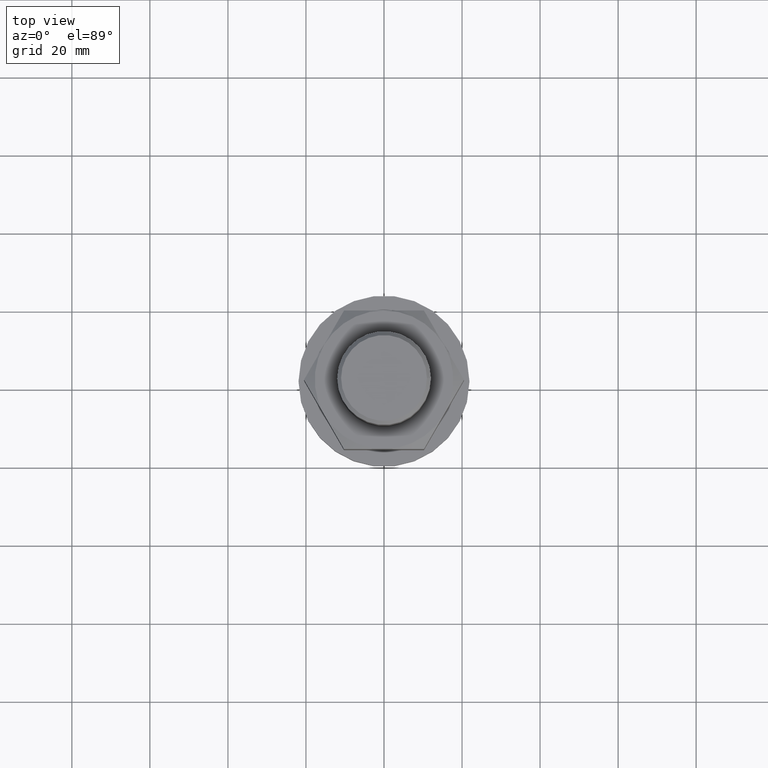
[diagram: clean part render]
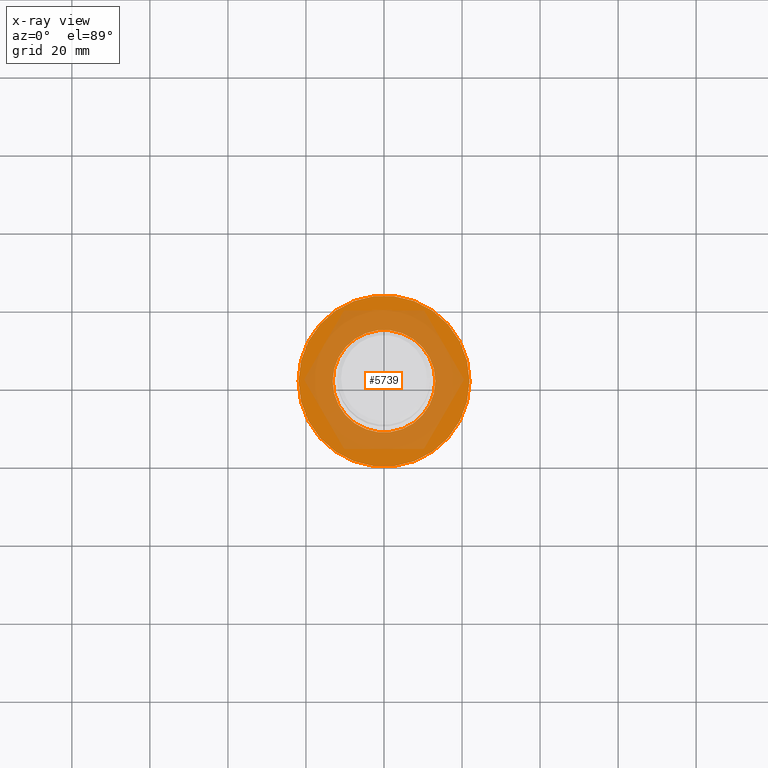
[diagram: x-ray — body ghosted, one internal face saturated and labeled with its STEP entity id]
A machine part, top view, then the same camera in x-ray: the body is ghosted and one INTERNAL B-rep face — a face not visible from any outside direction — is saturated and labeled: STEP entity #5739.
In plain terms, the highlighted planar face has unit normal (0, 0, 1).
Its self-contained STEP definition (entity closure, byte-faithful):
#22 = EDGE_CURVE ( 'NONE', #3017, #3017, #5669, .T. ) ;
#55 = CARTESIAN_POINT ( 'NONE',  ( 0.000000000000000000, 0.000000000000000000, 1.500000000000000000 ) ) ;
#121 = EDGE_CURVE ( 'NONE', #3299, #3299, #3829, .T. ) ;
#280 = EDGE_LOOP ( 'NONE', ( #510 ) ) ;
#472 = DIRECTION ( 'NONE',  ( 0.000000000000000000, 0.000000000000000000, 1.000000000000000000 ) ) ;
#510 = ORIENTED_EDGE ( 'NONE', *, *, #22, .F. ) ;
#554 = DIRECTION ( 'NONE',  ( 0.000000000000000000, 0.000000000000000000, 1.000000000000000000 ) ) ;
#578 = CARTESIAN_POINT ( 'NONE',  ( 13.15000000000000036, 0.000000000000000000, 1.500000000000000000 ) ) ;
#598 = AXIS2_PLACEMENT_3D ( 'NONE', #55, #554, #2584 ) ;
#1059 = DIRECTION ( 'NONE',  ( 1.000000000000000000, 0.000000000000000000, 0.000000000000000000 ) ) ;
#1574 = DIRECTION ( 'NONE',  ( 0.000000000000000000, 0.000000000000000000, 1.000000000000000000 ) ) ;
#2584 = DIRECTION ( 'NONE',  ( 1.000000000000000000, 0.000000000000000000, -0.000000000000000000 ) ) ;
#2850 = ORIENTED_EDGE ( 'NONE', *, *, #121, .T. ) ;
#2905 = CARTESIAN_POINT ( 'NONE',  ( 0.000000000000000000, 0.000000000000000000, 1.500000000000000000 ) ) ;
#3017 = VERTEX_POINT ( 'NONE', #578 ) ;
#3299 = VERTEX_POINT ( 'NONE', #3900 ) ;
#3493 = DIRECTION ( 'NONE',  ( 1.000000000000000000, 0.000000000000000000, 0.000000000000000000 ) ) ;
#3741 = FACE_BOUND ( 'NONE', #280, .T. ) ;
#3829 = CIRCLE ( 'NONE', #5142, 21.89999999999999858 ) ;
#3900 = CARTESIAN_POINT ( 'NONE',  ( 21.89999999999999858, 0.000000000000000000, 1.500000000000000000 ) ) ;
#3969 = PLANE ( 'NONE',  #598 ) ;
#4174 = AXIS2_PLACEMENT_3D ( 'NONE', #2905, #472, #1059 ) ;
#5081 = CARTESIAN_POINT ( 'NONE',  ( 0.000000000000000000, 0.000000000000000000, 1.500000000000000000 ) ) ;
#5142 = AXIS2_PLACEMENT_3D ( 'NONE', #5081, #1574, #3493 ) ;
#5333 = FACE_OUTER_BOUND ( 'NONE', #5689, .T. ) ;
#5669 = CIRCLE ( 'NONE', #4174, 13.15000000000000036 ) ;
#5689 = EDGE_LOOP ( 'NONE', ( #2850 ) ) ;
#5739 = ADVANCED_FACE ( 'NONE', ( #5333, #3741 ), #3969, .T. ) ;